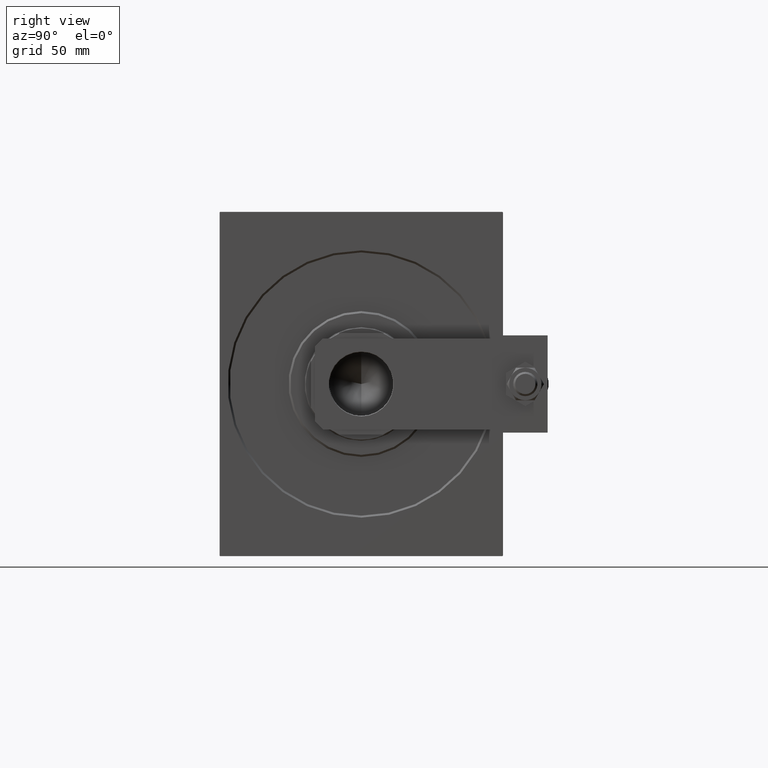
[diagram: clean part render]
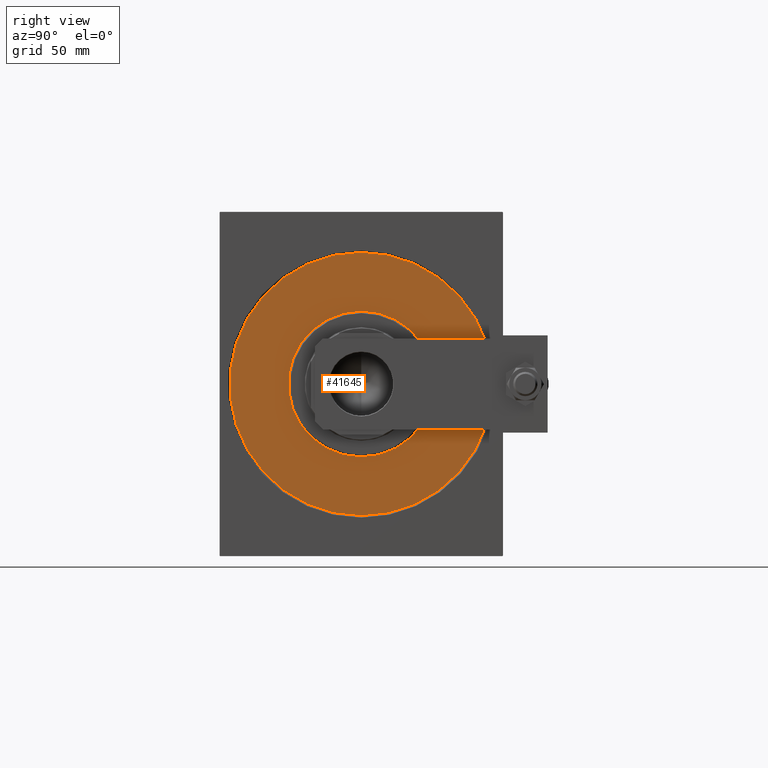
[diagram: same view with one face highlighted and labeled with its STEP entity id]
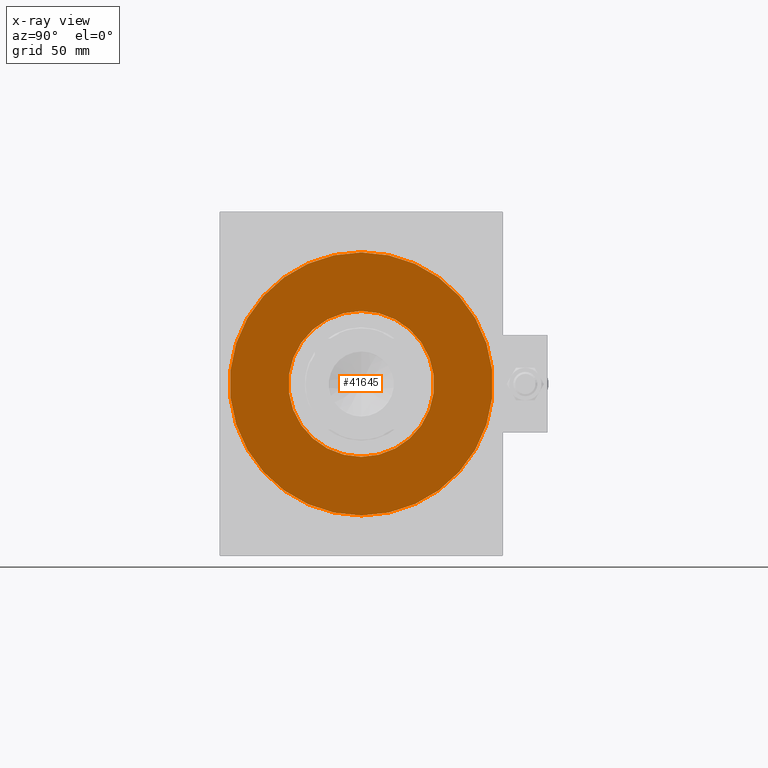
[diagram: x-ray of the same camera — body ghosted, the highlighted face saturated]
A machine part, right view. The second image highlights one B-rep face of the part: STEP entity #41645.
The next image is the same camera in x-ray: the body ghosted, the highlighted face saturated — about 0% of this face is hidden behind the body in this view.
In plain terms, the highlighted planar face has unit normal (1, 0, 0).
Its self-contained STEP definition (entity closure, byte-faithful):
#965 = CARTESIAN_POINT ( 'NONE',  ( 0.000000000000000000, 0.000000000000000000, 0.000000000000000000 ) ) ;
#5057 = ORIENTED_EDGE ( 'NONE', *, *, #48067, .T. ) ;
#5593 = VERTEX_POINT ( 'NONE', #9263 ) ;
#5640 = CARTESIAN_POINT ( 'NONE',  ( 0.000000000000000000, 4.408728476930470856E-15, -36.00000000000000000 ) ) ;
#5904 = CIRCLE ( 'NONE', #40603, 65.00000000000000000 ) ;
#6649 = ORIENTED_EDGE ( 'NONE', *, *, #19699, .T. ) ;
#7729 = CIRCLE ( 'NONE', #37551, 36.00000000000000000 ) ;
#9263 = CARTESIAN_POINT ( 'NONE',  ( 0.000000000000000000, 0.000000000000000000, -65.00000000000000000 ) ) ;
#11239 = DIRECTION ( 'NONE',  ( 1.000000000000000000, 0.000000000000000000, 0.000000000000000000 ) ) ;
#12337 = VERTEX_POINT ( 'NONE', #19002 ) ;
#13551 = DIRECTION ( 'NONE',  ( 0.000000000000000000, 0.000000000000000000, -1.000000000000000000 ) ) ;
#13757 = EDGE_LOOP ( 'NONE', ( #45521, #17493 ) ) ;
#15783 = CARTESIAN_POINT ( 'NONE',  ( 0.000000000000000000, 0.000000000000000000, 0.000000000000000000 ) ) ;
#17262 = CIRCLE ( 'NONE', #45496, 36.00000000000000000 ) ;
#17357 = CARTESIAN_POINT ( 'NONE',  ( 0.000000000000000000, 0.000000000000000000, 0.000000000000000000 ) ) ;
#17493 = ORIENTED_EDGE ( 'NONE', *, *, #32711, .F. ) ;
#18662 = CARTESIAN_POINT ( 'NONE',  ( 0.000000000000000000, 0.000000000000000000, 0.000000000000000000 ) ) ;
#19002 = CARTESIAN_POINT ( 'NONE',  ( 0.000000000000000000, 0.000000000000000000, 36.00000000000000000 ) ) ;
#19699 = EDGE_CURVE ( 'NONE', #5593, #46129, #38073, .T. ) ;
#20893 = DIRECTION ( 'NONE',  ( 0.000000000000000000, 0.000000000000000000, -1.000000000000000000 ) ) ;
#21394 = DIRECTION ( 'NONE',  ( 1.000000000000000000, 0.000000000000000000, 0.000000000000000000 ) ) ;
#21889 = EDGE_LOOP ( 'NONE', ( #6649, #5057 ) ) ;
#23110 = DIRECTION ( 'NONE',  ( 0.000000000000000000, 0.000000000000000000, -1.000000000000000000 ) ) ;
#24927 = DIRECTION ( 'NONE',  ( 1.000000000000000000, -0.000000000000000000, 0.000000000000000000 ) ) ;
#25120 = EDGE_CURVE ( 'NONE', #12337, #37737, #17262, .T. ) ;
#25270 = CARTESIAN_POINT ( 'NONE',  ( 0.000000000000000000, 0.000000000000000000, 0.000000000000000000 ) ) ;
#27993 = FACE_BOUND ( 'NONE', #13757, .T. ) ;
#29067 = AXIS2_PLACEMENT_3D ( 'NONE', #17357, #21394, #13551 ) ;
#32621 = CARTESIAN_POINT ( 'NONE',  ( 0.000000000000000000, 7.960204194457797252E-15, 65.00000000000000000 ) ) ;
#32711 = EDGE_CURVE ( 'NONE', #37737, #12337, #7729, .T. ) ;
#34827 = DIRECTION ( 'NONE',  ( 1.000000000000000000, 0.000000000000000000, 0.000000000000000000 ) ) ;
#36806 = PLANE ( 'NONE',  #29067 ) ;
#37551 = AXIS2_PLACEMENT_3D ( 'NONE', #965, #24927, #20893 ) ;
#37737 = VERTEX_POINT ( 'NONE', #5640 ) ;
#38073 = CIRCLE ( 'NONE', #49359, 65.00000000000000000 ) ;
#40594 = FACE_OUTER_BOUND ( 'NONE', #21889, .T. ) ;
#40603 = AXIS2_PLACEMENT_3D ( 'NONE', #15783, #11239, #23110 ) ;
#41645 = ADVANCED_FACE ( 'NONE', ( #40594, #27993 ), #36806, .T. ) ;
#42165 = DIRECTION ( 'NONE',  ( 0.000000000000000000, 0.000000000000000000, -1.000000000000000000 ) ) ;
#45496 = AXIS2_PLACEMENT_3D ( 'NONE', #25270, #48523, #47526 ) ;
#45521 = ORIENTED_EDGE ( 'NONE', *, *, #25120, .F. ) ;
#46129 = VERTEX_POINT ( 'NONE', #32621 ) ;
#47526 = DIRECTION ( 'NONE',  ( 0.000000000000000000, 0.000000000000000000, -1.000000000000000000 ) ) ;
#48067 = EDGE_CURVE ( 'NONE', #46129, #5593, #5904, .T. ) ;
#48523 = DIRECTION ( 'NONE',  ( 1.000000000000000000, -0.000000000000000000, 0.000000000000000000 ) ) ;
#49359 = AXIS2_PLACEMENT_3D ( 'NONE', #18662, #34827, #42165 ) ;